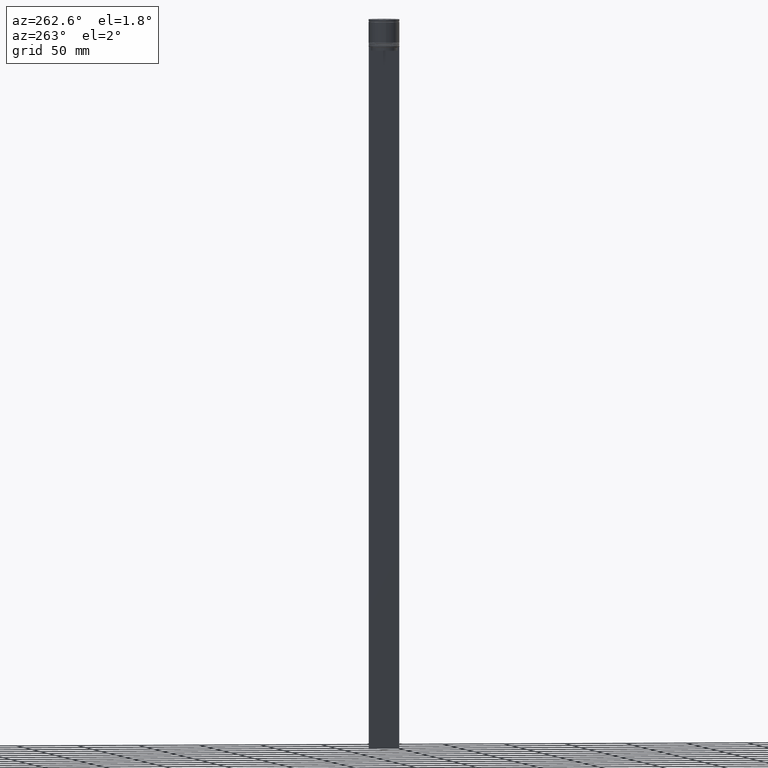
[diagram: clean part render]
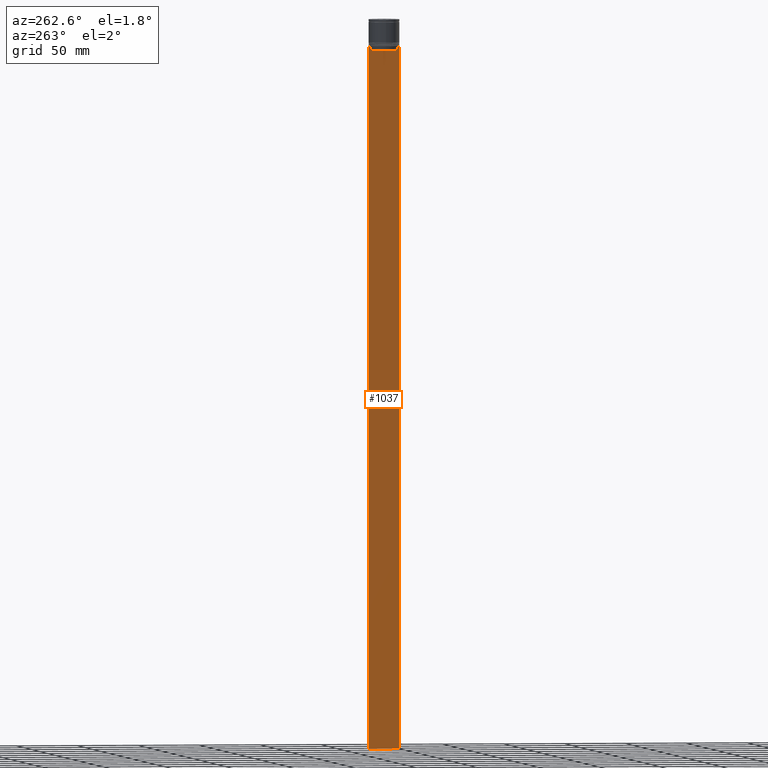
[diagram: same view with one face highlighted and labeled with its STEP entity id]
A machine part, auxiliary view. The second image highlights one B-rep face of the part: STEP entity #1037.
In plain terms, the highlighted planar face has unit normal (-1, 0, 0).
Its self-contained STEP definition (entity closure, byte-faithful):
#38 = DIRECTION ( 'NONE',  ( 0.000000000000000000, 0.000000000000000000, -1.000000000000000000 ) ) ;
#48 = LINE ( 'NONE', #693, #1637 ) ;
#57 = EDGE_CURVE ( 'NONE', #713, #288, #102, .T. ) ;
#102 = LINE ( 'NONE', #1062, #934 ) ;
#133 = ORIENTED_EDGE ( 'NONE', *, *, #1511, .F. ) ;
#152 = DIRECTION ( 'NONE',  ( 0.000000000000000000, 0.000000000000000000, 1.000000000000000000 ) ) ;
#164 = CARTESIAN_POINT ( 'NONE',  ( -0.5000000000000000000, -11.22219891450653151, -22.66667035398018726 ) ) ;
#165 = DIRECTION ( 'NONE',  ( -1.000000000000000000, 0.000000000000000000, 0.000000000000000000 ) ) ;
#174 = EDGE_CURVE ( 'NONE', #1173, #713, #48, .T. ) ;
#176 = DIRECTION ( 'NONE',  ( 0.000000000000000000, -1.000000000000000000, 0.000000000000000000 ) ) ;
#195 = VECTOR ( 'NONE', #1767, 1000.000000000000000 ) ;
#198 = ORIENTED_EDGE ( 'NONE', *, *, #990, .F. ) ;
#227 = VERTEX_POINT ( 'NONE', #1893 ) ;
#247 = LINE ( 'NONE', #885, #306 ) ;
#260 = ORIENTED_EDGE ( 'NONE', *, *, #1943, .F. ) ;
#288 = VERTEX_POINT ( 'NONE', #1900 ) ;
#301 = ORIENTED_EDGE ( 'NONE', *, *, #324, .F. ) ;
#303 = CARTESIAN_POINT ( 'NONE',  ( -0.5000000000000000000, 11.38902980942626897, -22.50000000000000000 ) ) ;
#306 = VECTOR ( 'NONE', #1519, 1000.000000000000000 ) ;
#315 = VERTEX_POINT ( 'NONE', #317 ) ;
#317 = CARTESIAN_POINT ( 'NONE',  ( -0.5000000000000000000, 12.38991525394746596, -22.50000000000000000 ) ) ;
#324 = EDGE_CURVE ( 'NONE', #1725, #684, #478, .T. ) ;
#344 = VECTOR ( 'NONE', #1901, 1000.000000000000000 ) ;
#465 = AXIS2_PLACEMENT_3D ( 'NONE', #939, #165, #152 ) ;
#470 = VECTOR ( 'NONE', #176, 1000.000000000000000 ) ;
#478 = LINE ( 'NONE', #1113, #195 ) ;
#504 = CARTESIAN_POINT ( 'NONE',  ( -0.5000000000000000000, -10.88852607105297032, -22.99999999999999645 ) ) ;
#519 = CARTESIAN_POINT ( 'NONE',  ( -0.5000000000000000000, -11.05536450423839412, -22.83333718996392747 ) ) ;
#524 = EDGE_CURVE ( 'NONE', #536, #288, #1644, .T. ) ;
#532 = LINE ( 'NONE', #1163, #942 ) ;
#536 = VERTEX_POINT ( 'NONE', #1190 ) ;
#545 = DIRECTION ( 'NONE',  ( 0.000000000000000000, 1.000000000000000000, 0.000000000000000000 ) ) ;
#575 = DIRECTION ( 'NONE',  ( 0.000000000000000000, -1.000000000000000000, 0.000000000000000000 ) ) ;
#602 = CARTESIAN_POINT ( 'NONE',  ( -0.5000000000000000000, 10.88852607105297032, -22.99999999999999645 ) ) ;
#616 = CARTESIAN_POINT ( 'NONE',  ( -0.5000000000000000000, 11.05536450345590715, -22.83333719074559554 ) ) ;
#623 = CARTESIAN_POINT ( 'NONE',  ( -0.5000000000000000000, -10.88852607105297032, 0.000000000000000000 ) ) ;
#631 = CARTESIAN_POINT ( 'NONE',  ( -0.5000000000000000000, 10.88852607105297032, -22.99999999999999645 ) ) ;
#653 = CARTESIAN_POINT ( 'NONE',  ( -0.5000000000000000000, 11.38902980942626897, -22.50000000000000000 ) ) ;
#673 = EDGE_CURVE ( 'NONE', #1027, #1332, #1773, .T. ) ;
#684 = VERTEX_POINT ( 'NONE', #1780 ) ;
#693 = CARTESIAN_POINT ( 'NONE',  ( -0.5000000000000000000, -12.49999999999999289, 2.519992006393609874 ) ) ;
#696 = CARTESIAN_POINT ( 'NONE',  ( -0.5000000000000000000, -12.49999999999999289, -22.50000000000000000 ) ) ;
#704 = ORIENTED_EDGE ( 'NONE', *, *, #57, .F. ) ;
#713 = VERTEX_POINT ( 'NONE', #1420 ) ;
#803 = CARTESIAN_POINT ( 'NONE',  ( -0.5000000000000000000, -12.38991525394746596, -22.50000000000000000 ) ) ;
#818 = LINE ( 'NONE', #696, #470 ) ;
#845 = ORIENTED_EDGE ( 'NONE', *, *, #1132, .F. ) ;
#848 = CARTESIAN_POINT ( 'NONE',  ( -0.5000000000000000000, 12.50000000000000711, 2.519992006393609874 ) ) ;
#885 = CARTESIAN_POINT ( 'NONE',  ( -0.5000000000000000000, 10.88852607105297032, 0.000000000000000000 ) ) ;
#900 = ORIENTED_EDGE ( 'NONE', *, *, #524, .T. ) ;
#934 = VECTOR ( 'NONE', #545, 1000.000000000000000 ) ;
#939 = CARTESIAN_POINT ( 'NONE',  ( -0.5000000000000000000, -12.49999999999999289, 2.519992006393609874 ) ) ;
#942 = VECTOR ( 'NONE', #575, 1000.000000000000000 ) ;
#987 = LINE ( 'NONE', #1620, #2050 ) ;
#990 = EDGE_CURVE ( 'NONE', #227, #1552, #1874, .T. ) ;
#1027 = VERTEX_POINT ( 'NONE', #653 ) ;
#1037 = ADVANCED_FACE ( 'NONE', ( #1761 ), #1726, .T. ) ;
#1062 = CARTESIAN_POINT ( 'NONE',  ( -0.5000000000000000000, -12.49999999999999289, -594.4999999999998863 ) ) ;
#1113 = CARTESIAN_POINT ( 'NONE',  ( -0.5000000000000000000, 10.90000000000000924, -25.50000000000000000 ) ) ;
#1132 = EDGE_CURVE ( 'NONE', #536, #315, #532, .T. ) ;
#1163 = CARTESIAN_POINT ( 'NONE',  ( -0.5000000000000000000, -12.49999999999999289, -22.50000000000000000 ) ) ;
#1170 = DIRECTION ( 'NONE',  ( 0.000000000000000000, 0.000000000000000000, -1.000000000000000000 ) ) ;
#1173 = VERTEX_POINT ( 'NONE', #1193 ) ;
#1190 = CARTESIAN_POINT ( 'NONE',  ( -0.5000000000000000000, 12.50000000000000711, -22.50000000000000000 ) ) ;
#1193 = CARTESIAN_POINT ( 'NONE',  ( -0.5000000000000000000, -12.49999999999999289, -22.50000000000000000 ) ) ;
#1209 = EDGE_CURVE ( 'NONE', #1332, #1725, #247, .T. ) ;
#1218 = VERTEX_POINT ( 'NONE', #803 ) ;
#1320 = CARTESIAN_POINT ( 'NONE',  ( -0.5000000000000000000, -11.38902980942626897, -22.50000000000000000 ) ) ;
#1332 = VERTEX_POINT ( 'NONE', #602 ) ;
#1349 = EDGE_CURVE ( 'NONE', #315, #1027, #1389, .T. ) ;
#1389 = LINE ( 'NONE', #1691, #1612 ) ;
#1405 = LINE ( 'NONE', #623, #344 ) ;
#1420 = CARTESIAN_POINT ( 'NONE',  ( -0.5000000000000000000, -12.49999999999999289, -594.4999999999998863 ) ) ;
#1429 = CARTESIAN_POINT ( 'NONE',  ( -0.5000000000000000000, 11.22219891375843126, -22.66667035472756808 ) ) ;
#1500 = ORIENTED_EDGE ( 'NONE', *, *, #1349, .F. ) ;
#1511 = EDGE_CURVE ( 'NONE', #1218, #1173, #987, .T. ) ;
#1519 = DIRECTION ( 'NONE',  ( 0.000000000000000000, 0.000000000000000000, -1.000000000000000000 ) ) ;
#1552 = VERTEX_POINT ( 'NONE', #1897 ) ;
#1612 = VECTOR ( 'NONE', #1702, 1000.000000000000000 ) ;
#1620 = CARTESIAN_POINT ( 'NONE',  ( -0.5000000000000000000, -12.49999999999999289, -22.50000000000000000 ) ) ;
#1637 = VECTOR ( 'NONE', #1170, 1000.000000000000000 ) ;
#1644 = LINE ( 'NONE', #848, #1778 ) ;
#1649 = CARTESIAN_POINT ( 'NONE',  ( -0.5000000000000000000, 10.88852607105296855, -25.50000000000000000 ) ) ;
#1691 = CARTESIAN_POINT ( 'NONE',  ( -0.5000000000000000000, -12.49999999999999289, -22.50000000000000000 ) ) ;
#1702 = DIRECTION ( 'NONE',  ( 0.000000000000000000, -1.000000000000000000, 0.000000000000000000 ) ) ;
#1725 = VERTEX_POINT ( 'NONE', #1649 ) ;
#1726 = PLANE ( 'NONE',  #465 ) ;
#1761 = FACE_OUTER_BOUND ( 'NONE', #1836, .T. ) ;
#1767 = DIRECTION ( 'NONE',  ( 0.000000000000000000, -1.000000000000000000, 0.000000000000000000 ) ) ;
#1773 = B_SPLINE_CURVE_WITH_KNOTS ( 'NONE', 3,
 ( #303, #1429, #616, #631 ),
 .UNSPECIFIED., .F., .F.,
 ( 4, 4 ),
 ( 0.01935560801904635808, 0.02006307108468587813 ),
 .UNSPECIFIED. ) ;
#1778 = VECTOR ( 'NONE', #38, 1000.000000000000000 ) ;
#1780 = CARTESIAN_POINT ( 'NONE',  ( -0.5000000000000000000, -10.88852607105296855, -25.50000000000000000 ) ) ;
#1836 = EDGE_LOOP ( 'NONE', ( #1866, #1500, #845, #900, #704, #2012, #133, #1992, #198, #260, #301, #2084 ) ) ;
#1866 = ORIENTED_EDGE ( 'NONE', *, *, #673, .F. ) ;
#1874 = B_SPLINE_CURVE_WITH_KNOTS ( 'NONE', 3,
 ( #504, #519, #164, #1320 ),
 .UNSPECIFIED., .F., .F.,
 ( 4, 4 ),
 ( 0.05041323384703231408, 0.05112713601261610619 ),
 .UNSPECIFIED. ) ;
#1893 = CARTESIAN_POINT ( 'NONE',  ( -0.5000000000000000000, -10.88852607105297032, -22.99999999999999645 ) ) ;
#1897 = CARTESIAN_POINT ( 'NONE',  ( -0.5000000000000000000, -11.38902980942626897, -22.50000000000000000 ) ) ;
#1900 = CARTESIAN_POINT ( 'NONE',  ( -0.5000000000000000000, 12.50000000000000711, -594.4999999999998863 ) ) ;
#1901 = DIRECTION ( 'NONE',  ( -0.000000000000000000, -0.000000000000000000, 1.000000000000000000 ) ) ;
#1918 = DIRECTION ( 'NONE',  ( 0.000000000000000000, -1.000000000000000000, 0.000000000000000000 ) ) ;
#1943 = EDGE_CURVE ( 'NONE', #684, #227, #1405, .T. ) ;
#1992 = ORIENTED_EDGE ( 'NONE', *, *, #2076, .F. ) ;
#2012 = ORIENTED_EDGE ( 'NONE', *, *, #174, .F. ) ;
#2050 = VECTOR ( 'NONE', #1918, 1000.000000000000000 ) ;
#2076 = EDGE_CURVE ( 'NONE', #1552, #1218, #818, .T. ) ;
#2084 = ORIENTED_EDGE ( 'NONE', *, *, #1209, .F. ) ;